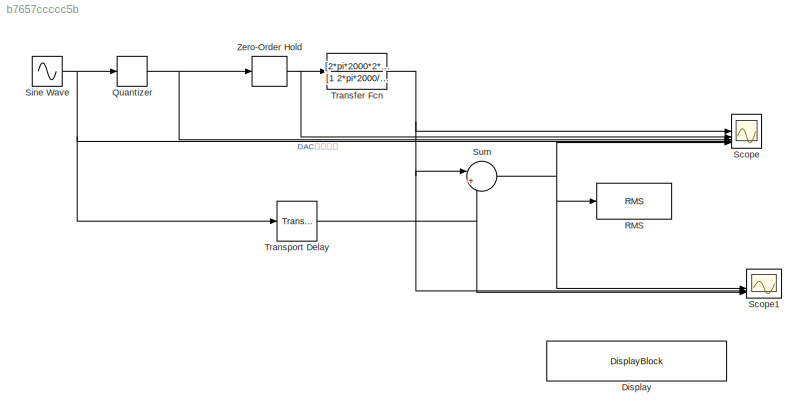
MODEL slx_b7657ccccc5b
KIND model
CONFIG AbsTol = auto
CONFIG EnableMultiTasking = off
CONFIG FixedStep = auto
CONFIG MaxStep = auto
CONFIG MinStep = auto
CONFIG RelTol = 1e-3
CONFIG SampleTimeConstraint = Unconstrained
CONFIG SolverName = VariableStepAuto
CONFIG StartTime = 0.0
CONFIG StopTime = 1
BLOCK [DisplayBlock] Display
  LabelPosition = Hide
  Transparency = 1
BLOCK [Quantizer] Quantizer
  QuantizationInterval = 3.3/10
BLOCK [Reference] RMS  REF=dspstat3/RMS
  SourceBlock = dspstat3/RMS
  SourceType = RMS
  UserDataPersistent = on
BLOCK [Scope] Scope
  Floating = off
  NumInputPorts = 5
  ScopeSpecificationString = Simulink.scopes.TimeScopeBlockCfg('CurrentConfiguration', extmgr.ConfigurationSet(extmgr.Configuration('Core','General UI',true),extmgr.Configuration('Core','Source UI',true),extmgr.Configuration('Sources','WiredSimulink',true,'SampleTime','1e-7'),extmgr.Configuration('Visuals','Time Domain',true,'SerializedDisplays',{struct('MinYLimReal','-1.26577','MaxYLimReal','1.08001','YLabelReal','','MinYLim...<+1649ch>
BLOCK [Scope] Scope1
  Floating = off
  NumInputPorts = 4
  ScopeSpecificationString = Simulink.scopes.TimeScopeBlockCfg('CurrentConfiguration', extmgr.ConfigurationSet(extmgr.Configuration('Core','General UI',true),extmgr.Configuration('Core','Source UI',true),extmgr.Configuration('Sources','WiredSimulink',true,'SampleTime','1e-7','DataLoggingVariableName','ScopeData1'),extmgr.Configuration('Visuals','Time Domain',true,'SerializedDisplays',{struct('MinYLimReal','-1.25','MaxYLimReal...<+1655ch>
BLOCK [Sin] Sine Wave
  Frequency = 2*pi*1000
  SampleTime = 0
BLOCK [Sum] Sum
  Inputs = |+-
  NameLocation = top
BLOCK [TransferFcn] Transfer Fcn
  Denominator = [1 2*pi*2000/0.707 2*pi*2000*2*pi*2000]
  Numerator = [2*pi*2000*2*pi*2000]
BLOCK [TransportDelay] Transport Delay
  DelayTime = 0.0001203
BLOCK [ZeroOrderHold] Zero-Order Hold
  SampleTime = 1e-7
NET Quantizer:1 -> Scope:3, Zero-Order Hold:1
NET Sine Wave:1 -> Quantizer:1, Scope:4, Transport Delay:1
NET Sum:1 -> RMS:1, Scope1:2, Scope:5
NET Transfer Fcn:1 -> Scope1:3, Scope:1, Sum:1
NET Transport Delay:1 -> Scope1:4, Sum:2
NET Zero-Order Hold:1 -> Scope:2, Transfer Fcn:1
note: NET lines group one-source signal fan-out (src -> all destinations, sorted); 1:1 wires keep LINE
